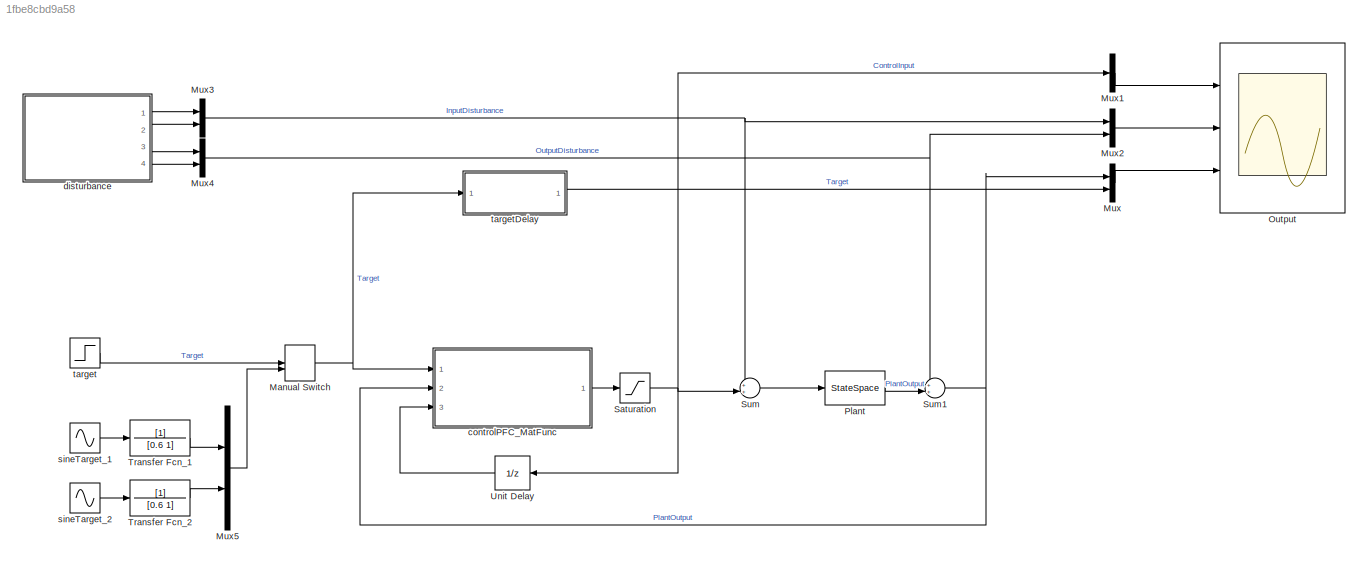
MODEL slx_1fbe8cbd9a58
KIND model
CONFIG AbsTol = auto
CONFIG FixedStep = auto
CONFIG MaxStep = auto
CONFIG MinStep = auto
CONFIG RelTol = 1e-3
CONFIG SampleTimeConstraint = Unconstrained
CONFIG Solver = ode45
CONFIG SolverMode = Auto
CONFIG SolverName = ode45
CONFIG StartTime = 0.0
CONFIG StopTime = 30
BLOCK [ManualSwitch] Manual Switch
  CurrentSetting = 0
BLOCK [Mux] Mux
  DisplayOption = bar
  Inputs = 2
  Ports = [2, 1]
BLOCK [Mux] Mux1
  DisplayOption = bar
  Inputs = 1
  Ports = [1, 1]
BLOCK [Mux] Mux2
  DisplayOption = bar
  Inputs = 2
  Ports = [2, 1]
BLOCK [Mux] Mux3
  DisplayOption = bar
  Inputs = 2
  Ports = [2, 1]
BLOCK [Mux] Mux4
  DisplayOption = bar
  Inputs = 2
  Ports = [2, 1]
BLOCK [Mux] Mux5
  DisplayOption = bar
  Inputs = 2
  Ports = [2, 1]
BLOCK [Scope] Output
  Floating = off
  LegendLocations = 0.78485     0.90396     0.16879    0.040554\n0.063357     0.56069     0.21231     0.07512\n 0.79064    0.065697     0.16667     0.07512
  LimitDataPoints = off
  NumInputPorts = 3
  Ports = [3]
  SaveName = ScopeData1
  ShowLegends = on
  TimeRange = 30
  YMax = 3~0.5~2.5
  YMin = -3~-0.3~-2
  ZoomMode = xonly
BLOCK [StateSpace] Plant
  A = plant.a
  B = plant.b
  C = plant.c
  D = plant.d
  Ports = [1, 1]
  X0 = 0
BLOCK [Saturate] Saturation
  InputPortMap = u0
  LowerLimit = -3
  Ports = [1, 1]
  UpperLimit = 3
BLOCK [Sum] Sum
  IconShape = round
  InputSameDT = off
  Inputs = ++|
  OutDataTypeStr = Inherit: Inherit via internal rule
  Ports = [2, 1]
  SaturateOnIntegerOverflow = off
BLOCK [Sum] Sum1
  IconShape = round
  InputSameDT = off
  Inputs = ++|
  OutDataTypeStr = Inherit: Inherit via internal rule
  Ports = [2, 1]
  SaturateOnIntegerOverflow = off
BLOCK [TransferFcn] Transfer Fcn_1
  Denominator = [0.6 1]
BLOCK [TransferFcn] Transfer Fcn_2
  Denominator = [0.6 1]
BLOCK [UnitDelay] Unit Delay
  InputProcessing = Elements as channels (sample based)
  SampleTime = pfc.dSamplingPeriod
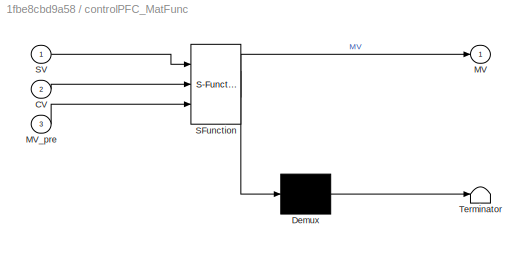
BLOCK [SubSystem] controlPFC_MatFunc
  ErrorFcn = Stateflow.Translate.translate
  PermitHierarchicalResolution = ExplicitOnly
  Ports = [3, 1]
  RequestExecContextInheritance = off
  SFBlockType = MATLAB Function
  TreatAsAtomicUnit = on
BLOCK [Demux] controlPFC_MatFunc/ Demux 
  Outputs = 1
  Ports = [1, 1]
BLOCK [S-Function] controlPFC_MatFunc/ SFunction 
  EnableBusSupport = on
  FunctionName = sf_sfun
  Parameters = pfc
  PortCounts = [3 2]
  Ports = [3, 2]
  Tag = Stateflow S-Function PFC_model 2
BLOCK [Terminator] controlPFC_MatFunc/ Terminator 
BLOCK [Inport] controlPFC_MatFunc/CV
  IconDisplay = Port number
  Port = 2
BLOCK [Outport] controlPFC_MatFunc/MV
  IconDisplay = Port number
BLOCK [Inport] controlPFC_MatFunc/MV_pre
  IconDisplay = Port number
  Port = 3
BLOCK [Inport] controlPFC_MatFunc/SV
  IconDisplay = Port number
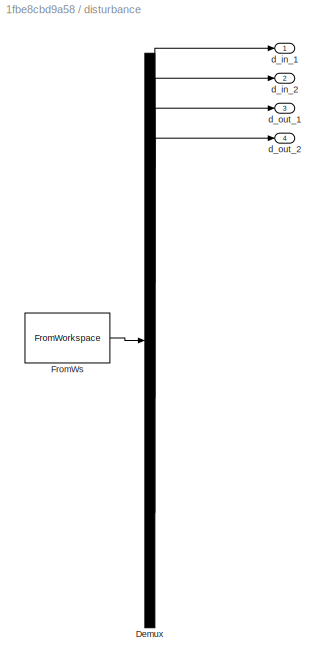
BLOCK [SubSystem] disturbance
  ClipboardFcn = sigbuilder_block('clipboard');
  CloseFcn = sigbuilder_block('close');
  ContinueFcn = sigbuilder_block('continue');
  CopyFcn = sigbuilder_block('copy');
  DeleteFcn = sigbuilder_block('delete');
  LoadFcn = sigbuilder_block('load');
  MaskHideContents = on
  ModelCloseFcn = sigbuilder_block('modelClose');
  NameChangeFcn = sigbuilder_block('namechange');
  OpenFcn = sigbuilder_block('open',[437.6 199.2 550.4 400 ]);
  PauseFcn = sigbuilder_block('pause');
  Ports = [0, 4]
  PreSaveFcn = sigbuilder_block('preSave');
  RequestExecContextInheritance = off
  StartFcn = sigbuilder_block('start');
  StopFcn = sigbuilder_block('stop');
  Tag = STV Subsys
BLOCK [Demux] disturbance/Demux
  Ports = [1, 4]
  Tag = STV Demux
BLOCK [FromWorkspace] disturbance/FromWs
  SampleTime = 0
  Tag = STV FromWs
  VariableName = tuvar
  ZeroCross = on
BLOCK [Outport] disturbance/d_in_1
  IconDisplay = Port number
  Tag = STV Outport
BLOCK [Outport] disturbance/d_in_2
  IconDisplay = Port number
  Port = 2
  Tag = STV Outport
BLOCK [Outport] disturbance/d_out_1
  IconDisplay = Port number
  Port = 3
  Tag = STV Outport
BLOCK [Outport] disturbance/d_out_2
  IconDisplay = Port number
  Port = 4
  Tag = STV Outport
BLOCK [Sin] sineTarget_1
  Frequency = 2*pi*0.2
  Ports = [0, 1]
  SampleTime = 0
BLOCK [Sin] sineTarget_2
  Amplitude = 2
  Frequency = 2*pi*0.1
  Phase = -pi/4
  Ports = [0, 1]
  SampleTime = 0
BLOCK [Step] target
  After = [1;2]
  Before = [0;0]
  SampleTime = 0
  Time = [1;5]
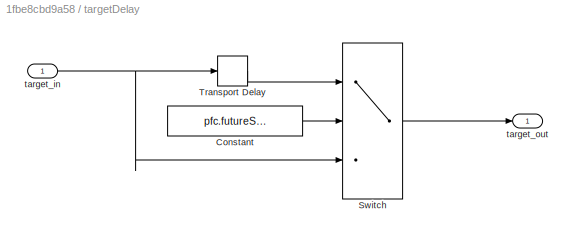
BLOCK [SubSystem] targetDelay
  Ports = [1, 1]
  RequestExecContextInheritance = off
BLOCK [Constant] targetDelay/Constant
  Value = pfc.futureSetpointFlag
BLOCK [Switch] targetDelay/Switch
  Criteria = u2 > Threshold
  InputSameDT = off
  SaturateOnIntegerOverflow = off
BLOCK [TransportDelay] targetDelay/Transport Delay
  DelayTime = pfc.dSamplingPeriod*(max(pfc.h))
  Ports = [1, 1]
BLOCK [Inport] targetDelay/target_in
  IconDisplay = Port number
BLOCK [Outport] targetDelay/target_out
  IconDisplay = Port number
NET Manual Switch:1 -> controlPFC_MatFunc:1, targetDelay:1
LINE Mux1:1 -> Output:1
LINE Mux2:1 -> Output:2
NET Mux3:1 -> Mux2:1, Sum:1
NET Mux4:1 -> Mux2:2, Sum1:1
LINE Mux5:1 -> Manual Switch:2
LINE Mux:1 -> Output:3
LINE Plant:1 -> Sum1:2
NET Saturation:1 -> Mux1:1, Sum:2, Unit Delay:1
NET Sum1:1 -> Mux:1, controlPFC_MatFunc:2
LINE Sum:1 -> Plant:1
LINE Transfer Fcn_1:1 -> Mux5:1
LINE Transfer Fcn_2:1 -> Mux5:2
LINE Unit Delay:1 -> controlPFC_MatFunc:3
LINE controlPFC_MatFunc:1 -> Saturation:1
LINE disturbance:1 -> Mux3:1
LINE disturbance:2 -> Mux3:2
LINE disturbance:3 -> Mux4:1
LINE disturbance:4 -> Mux4:2
LINE sineTarget_1:1 -> Transfer Fcn_1:1
LINE sineTarget_2:1 -> Transfer Fcn_2:1
LINE target:1 -> Manual Switch:1
LINE targetDelay/Constant:1 -> targetDelay/Switch:2
LINE targetDelay/Switch:1 -> targetDelay/target_out:1
LINE targetDelay/Transport Delay:1 -> targetDelay/Switch:1
NET targetDelay/target_in:1 -> targetDelay/Switch:3, targetDelay/Transport Delay:1
LINE targetDelay:1 -> Mux:2
note: NET lines group one-source signal fan-out (src -> all destinations, sorted); 1:1 wires keep LINE
CHART controlPFC_MatFunc states=1 transitions=1
  STATE_LABEL 'eML_blk_kernel()'
  STATE_LABEL 'SCRIPT:\nfunction MV = controlPFC_MatFunc( SV, CV, MV_pre, pfc)\n    %#codegen\n    MV = controlPFC( SV, CV, MV_pre, pfc );\nend'
